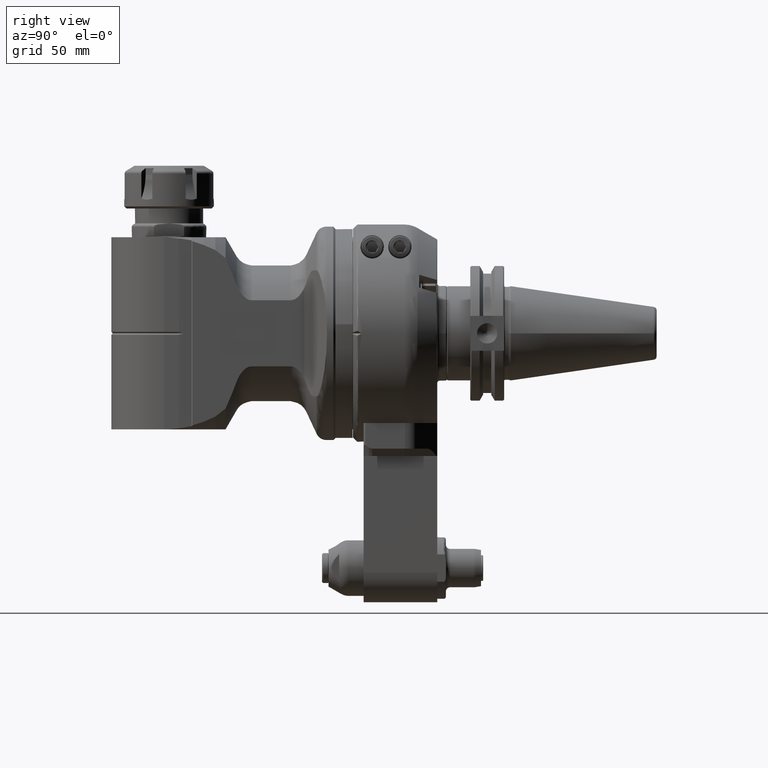
[diagram: clean part render]
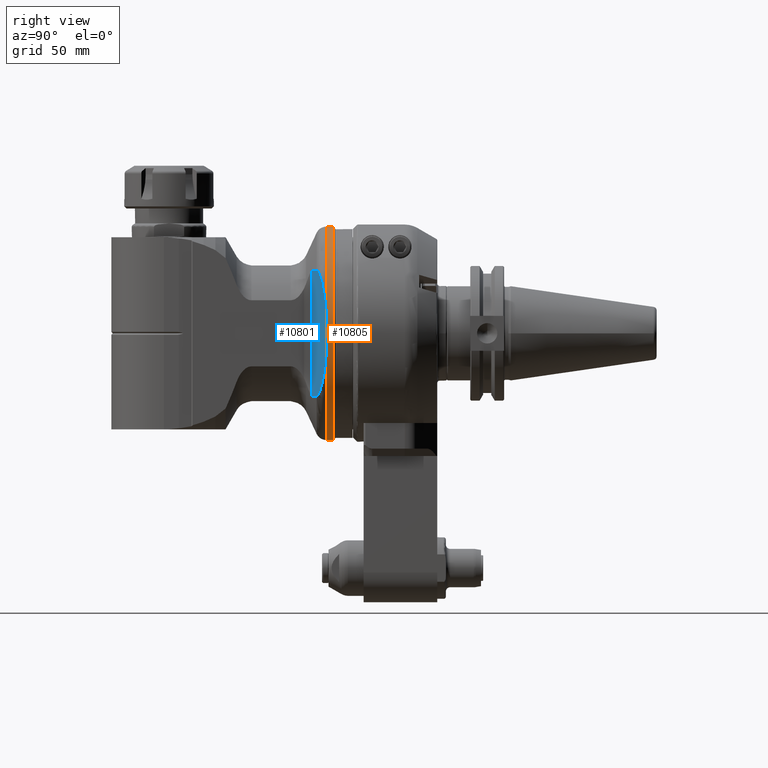
[diagram: same view with the hole feature highlighted: cylindrical wall and planar end face, labeled with their STEP entity ids]
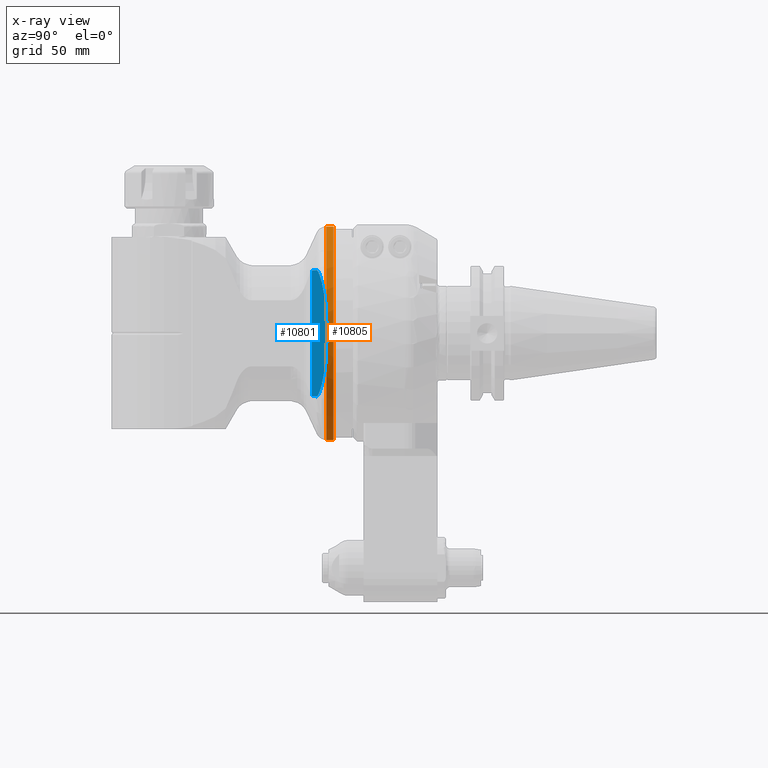
[diagram: x-ray of the same camera — body ghosted, the hole faces saturated]
A machine part, right view. The highlighted faces form one hole feature of diameter 100 mm: the cylindrical wall (entity #10805, orange) and its adjacent planar end face (entity #10801, blue) — they share a circular edge in the B-rep.
The next image is the same camera in x-ray (body ghosted, the hole faces saturated) — the bore reads through the body.
Wall:
#53=ELLIPSE('',#12007,53.2088886237962,50.);
#56=ELLIPSE('',#12013,53.2088886237962,50.);
#1034=LINE('',#21854,#1724);
#1724=VECTOR('',#14860,50.);
#1993=CYLINDRICAL_SURFACE('',#12016,50.);
#2901=FACE_OUTER_BOUND('',#3619,.T.);
#3619=EDGE_LOOP('',(#9532,#9533,#9534,#9535,#9536,#9537,#9538,#9539,#9540));
#4287=CIRCLE('',#12015,50.);
#4288=CIRCLE('',#12017,50.);
#4289=CIRCLE('',#12018,50.);
#4290=CIRCLE('',#12019,50.);
#4291=CIRCLE('',#12020,50.);
#5242=VERTEX_POINT('',#21761);
#5243=VERTEX_POINT('',#21780);
#5246=VERTEX_POINT('',#21807);
#5247=VERTEX_POINT('',#21826);
#5248=VERTEX_POINT('',#21849);
#5249=VERTEX_POINT('',#21850);
#5250=VERTEX_POINT('',#21853);
#6713=EDGE_CURVE('',#5242,#5243,#53,.T.);
#6719=EDGE_CURVE('',#5246,#5247,#56,.T.);
#6721=EDGE_CURVE('',#5247,#5242,#4287,.T.);
#6722=EDGE_CURVE('',#5248,#5249,#4288,.T.);
#6723=EDGE_CURVE('',#5249,#5248,#4289,.T.);
#6724=EDGE_CURVE('',#5249,#5250,#1034,.T.);
#6725=EDGE_CURVE('',#5243,#5250,#4290,.T.);
#6726=EDGE_CURVE('',#5250,#5246,#4291,.T.);
#9532=ORIENTED_EDGE('',*,*,#6722,.F.);
#9533=ORIENTED_EDGE('',*,*,#6723,.F.);
#9534=ORIENTED_EDGE('',*,*,#6724,.T.);
#9535=ORIENTED_EDGE('',*,*,#6725,.F.);
#9536=ORIENTED_EDGE('',*,*,#6713,.F.);
#9537=ORIENTED_EDGE('',*,*,#6721,.F.);
#9538=ORIENTED_EDGE('',*,*,#6719,.F.);
#9539=ORIENTED_EDGE('',*,*,#6726,.F.);
#9540=ORIENTED_EDGE('',*,*,#6724,.F.);
#10805=ADVANCED_FACE('',(#2901),#1993,.T.);
#12007=AXIS2_PLACEMENT_3D('',#21781,#14836,#14837);
#12013=AXIS2_PLACEMENT_3D('',#21827,#14848,#14849);
#12015=AXIS2_PLACEMENT_3D('',#21847,#14852,#14853);
#12016=AXIS2_PLACEMENT_3D('',#21848,#14854,#14855);
#12017=AXIS2_PLACEMENT_3D('',#21851,#14856,#14857);
#12018=AXIS2_PLACEMENT_3D('',#21852,#14858,#14859);
#12019=AXIS2_PLACEMENT_3D('',#21855,#14861,#14862);
#12020=AXIS2_PLACEMENT_3D('',#21856,#14863,#14864);
#14836=DIRECTION('center_axis',(0.939692620785897,0.,0.342020143325699));
#14837=DIRECTION('ref_axis',(0.342020143325699,0.,-0.939692620785897));
#14848=DIRECTION('center_axis',(0.939692620785897,0.,-0.342020143325699));
#14849=DIRECTION('ref_axis',(-0.342020143325699,0.,-0.939692620785897));
#14852=DIRECTION('center_axis',(1.,0.,0.));
#14853=DIRECTION('ref_axis',(0.,0.187279909699701,-0.982306589320703));
#14854=DIRECTION('center_axis',(-1.,0.,0.));
#14855=DIRECTION('ref_axis',(0.,1.,0.));
#14856=DIRECTION('center_axis',(-1.,0.,0.));
#14857=DIRECTION('ref_axis',(0.,1.,0.));
#14858=DIRECTION('center_axis',(-1.,0.,0.));
#14859=DIRECTION('ref_axis',(0.,1.,0.));
#14860=DIRECTION('',(1.,0.,0.));
#14861=DIRECTION('center_axis',(1.,0.,0.));
#14862=DIRECTION('ref_axis',(0.,-0.1872799096992,0.982306589320798));
#14863=DIRECTION('center_axis',(1.,0.,0.));
#14864=DIRECTION('ref_axis',(0.,-0.1872799096992,0.982306589320798));
#21761=CARTESIAN_POINT('',(16.31464863572,9.363995485014,49.11532946603));
#21780=CARTESIAN_POINT('',(16.31464863573,-9.363995485039,49.11532946603));
#21781=CARTESIAN_POINT('Origin',(34.1911666075347,0.,0.));
#21807=CARTESIAN_POINT('',(16.31464863572,-9.363995484987,-49.11532946603));
#21826=CARTESIAN_POINT('',(16.31464863573,9.36399548502,-49.11532946603));
#21827=CARTESIAN_POINT('Origin',(34.1911666075347,0.,0.));
#21847=CARTESIAN_POINT('Origin',(16.31464863572,0.,0.));
#21848=CARTESIAN_POINT('Origin',(54.606251,0.,0.));
#21849=CARTESIAN_POINT('',(13.,50.,0.));
#21850=CARTESIAN_POINT('',(13.,-50.,6.12323399573677E-15));
#21851=CARTESIAN_POINT('Origin',(13.,0.,0.));
#21852=CARTESIAN_POINT('Origin',(13.,0.,0.));
#21853=CARTESIAN_POINT('',(16.3146486357221,-50.,6.12323399573677E-15));
#21854=CARTESIAN_POINT('',(54.606251,-50.,6.12323399573677E-15));
#21855=CARTESIAN_POINT('Origin',(16.31464863572,0.,0.));
#21856=CARTESIAN_POINT('Origin',(16.31464863572,0.,0.));
End face:
#52=ELLIPSE('',#12005,50.3672702558906,29.5863002294594);
#53=ELLIPSE('',#12007,53.2088886237962,50.);
#54=ELLIPSE('',#12008,50.3672702558906,29.5863002294594);
#316=B_SPLINE_CURVE_WITH_KNOTS('',3,(#21762,#21763,#21764,#21765,#21766,
#21767,#21768,#21769,#21770,#21771,#21772,#21773,#21774,#21775,#21776,#21777,
#21778,#21779),.UNSPECIFIED.,.F.,.F.,(4,2,2,2,2,2,2,2,4),(7.09037016510969,
7.87701940297547,8.1777676130302,8.47851582308493,8.80354910515075,9.12858238721657,
9.39474930405345,9.46225514204568,9.47110878449787),.UNSPECIFIED.);
#317=B_SPLINE_CURVE_WITH_KNOTS('',3,(#21783,#21784,#21785,#21786,#21787,
#21788,#21789,#21790,#21791,#21792,#21793,#21794,#21795,#21796,#21797,#21798,
#21799,#21800),.UNSPECIFIED.,.F.,.F.,(4,2,2,2,2,2,2,2,4),(-5.31609924693855,
-4.52945000907508,-4.22870179902035,-3.92795358896562,-3.6029203068998,
-3.27788702483398,-3.0117201079971,-2.94421427000487,-2.93536062682004),
 .UNSPECIFIED.);
#1011=LINE('',#21300,#1701);
#1701=VECTOR('',#14677,58.64425386089);
#2345=PLANE('',#12006);
#2897=FACE_OUTER_BOUND('',#3615,.T.);
#3615=EDGE_LOOP('',(#9510,#9511,#9512,#9513,#9514,#9515));
#5167=VERTEX_POINT('',#21282);
#5168=VERTEX_POINT('',#21299);
#5241=VERTEX_POINT('',#21757);
#5242=VERTEX_POINT('',#21761);
#5243=VERTEX_POINT('',#21780);
#5244=VERTEX_POINT('',#21782);
#6607=EDGE_CURVE('',#5167,#5168,#1011,.T.);
#6711=EDGE_CURVE('',#5167,#5241,#52,.T.);
#6712=EDGE_CURVE('',#5242,#5241,#316,.T.);
#6713=EDGE_CURVE('',#5242,#5243,#53,.T.);
#6714=EDGE_CURVE('',#5243,#5244,#317,.T.);
#6715=EDGE_CURVE('',#5244,#5168,#54,.T.);
#9510=ORIENTED_EDGE('',*,*,#6711,.T.);
#9511=ORIENTED_EDGE('',*,*,#6712,.F.);
#9512=ORIENTED_EDGE('',*,*,#6713,.T.);
#9513=ORIENTED_EDGE('',*,*,#6714,.T.);
#9514=ORIENTED_EDGE('',*,*,#6715,.T.);
#9515=ORIENTED_EDGE('',*,*,#6607,.F.);
#10801=ADVANCED_FACE('',(#2897),#2345,.F.);
#12005=AXIS2_PLACEMENT_3D('',#21759,#14832,#14833);
#12006=AXIS2_PLACEMENT_3D('',#21760,#14834,#14835);
#12007=AXIS2_PLACEMENT_3D('',#21781,#14836,#14837);
#12008=AXIS2_PLACEMENT_3D('',#21801,#14838,#14839);
#14677=DIRECTION('',(5.827869456935E-14,-1.,-1.605390235018E-13));
#14832=DIRECTION('center_axis',(0.939692620785897,0.,0.342020143325699));
#14833=DIRECTION('ref_axis',(-0.342020143325699,1.39349996950756E-15,0.939692620785897));
#14834=DIRECTION('center_axis',(-0.939692620785897,0.,-0.342020143325699));
#14835=DIRECTION('ref_axis',(-0.342020143325699,0.,0.939692620785897));
#14836=DIRECTION('center_axis',(0.939692620785897,0.,0.342020143325699));
#14837=DIRECTION('ref_axis',(0.342020143325699,0.,-0.939692620785897));
#14838=DIRECTION('center_axis',(0.939692620785897,0.,0.342020143325699));
#14839=DIRECTION('ref_axis',(-0.342020143325699,1.39349996950756E-15,0.939692620785897));
#21282=CARTESIAN_POINT('',(23.04205971778,29.32212693045,30.6319194267));
#21299=CARTESIAN_POINT('',(23.04205971778,-29.32212693045,30.6319194267));
#21300=CARTESIAN_POINT('',(23.04205971778,29.32212693045,30.63191942671));
#21757=CARTESIAN_POINT('',(20.8461875004803,29.5857914026295,36.6650287600173));
#21759=CARTESIAN_POINT('Origin',(20.7451569433892,1.77635683940025E-14,
36.9426079340045));
#21760=CARTESIAN_POINT('Origin',(24.00000004808,0.,28.));
#21761=CARTESIAN_POINT('',(16.31464863572,9.363995485014,49.11532946603));
#21762=CARTESIAN_POINT('Ctrl Pts',(16.3146486357204,9.3639954850139,49.1153294660296));
#21763=CARTESIAN_POINT('Ctrl Pts',(16.5089546643471,12.1641130973679,48.5814780399138));
#21764=CARTESIAN_POINT('Ctrl Pts',(16.7970626489297,14.89268418197,47.7899078579087));
#21765=CARTESIAN_POINT('Ctrl Pts',(17.2779022721392,18.2335890551422,46.4688118507617));
#21766=CARTESIAN_POINT('Ctrl Pts',(17.4371534747882,19.2325943001654,46.0312727674626));
#21767=CARTESIAN_POINT('Ctrl Pts',(17.7890019232365,21.1784209335023,45.0645771002807));
#21768=CARTESIAN_POINT('Ctrl Pts',(17.9817805222086,22.1249619431992,44.5349222526509));
#21769=CARTESIAN_POINT('Ctrl Pts',(18.3765030725583,23.8625497430824,43.4504309586156));
#21770=CARTESIAN_POINT('Ctrl Pts',(18.6191470504405,24.8187856959593,42.7837721084178));
#21771=CARTESIAN_POINT('Ctrl Pts',(19.1522606848867,26.6017151146837,41.3190544357736));
#21772=CARTESIAN_POINT('Ctrl Pts',(19.4425932033076,27.4287590831444,40.5213723972789));
#21773=CARTESIAN_POINT('Ctrl Pts',(19.9758958164078,28.6338312433967,39.05613551005));
#21774=CARTESIAN_POINT('Ctrl Pts',(20.2825600158396,29.2079207962777,38.2135825467563));
#21775=CARTESIAN_POINT('Ctrl Pts',(20.6474740822835,29.5221310747005,37.2109893891602));
#21776=CARTESIAN_POINT('Ctrl Pts',(20.738047373882,29.5748920999617,36.9621413156877));
#21777=CARTESIAN_POINT('Ctrl Pts',(20.825030055835,29.5852601580148,36.7231583611383));
#21778=CARTESIAN_POINT('Ctrl Pts',(20.8354969146307,29.5858990840588,36.6944009029444));
#21779=CARTESIAN_POINT('Ctrl Pts',(20.8461875003858,29.5857914029915,36.6650287599816));
#21780=CARTESIAN_POINT('',(16.31464863573,-9.363995485039,49.11532946603));
#21781=CARTESIAN_POINT('Origin',(34.1911666075347,0.,0.));
#21782=CARTESIAN_POINT('',(20.8461875025902,-29.5857914047178,36.6650287525181));
#21783=CARTESIAN_POINT('Ctrl Pts',(16.3146486357221,-9.36399548503858,49.1153294660249));
#21784=CARTESIAN_POINT('Ctrl Pts',(16.5089546643488,-12.1641130973839,48.5814780399092));
#21785=CARTESIAN_POINT('Ctrl Pts',(16.7970626489307,-14.8926841819771,47.7899078579059));
#21786=CARTESIAN_POINT('Ctrl Pts',(17.2779022721392,-18.2335890551422,46.4688118507617));
#21787=CARTESIAN_POINT('Ctrl Pts',(17.4371534747882,-19.2325943001654,46.0312727674626));
#21788=CARTESIAN_POINT('Ctrl Pts',(17.7890019232365,-21.1784209335023,45.0645771002807));
#21789=CARTESIAN_POINT('Ctrl Pts',(17.9817805222086,-22.1249619431991,44.5349222526509));
#21790=CARTESIAN_POINT('Ctrl Pts',(18.3765030725583,-23.8625497430824,43.4504309586156));
#21791=CARTESIAN_POINT('Ctrl Pts',(18.6191470504405,-24.8187856959593,42.7837721084178));
#21792=CARTESIAN_POINT('Ctrl Pts',(19.1522606848867,-26.6017151146837,41.3190544357736));
#21793=CARTESIAN_POINT('Ctrl Pts',(19.4425932033076,-27.4287590831444,40.5213723972789));
#21794=CARTESIAN_POINT('Ctrl Pts',(19.9758958164078,-28.6338312433967,39.05613551005));
#21795=CARTESIAN_POINT('Ctrl Pts',(20.2825600158396,-29.2079207962777,38.2135825467563));
#21796=CARTESIAN_POINT('Ctrl Pts',(20.6474740822835,-29.5221310747005,37.2109893891602));
#21797=CARTESIAN_POINT('Ctrl Pts',(20.738047373882,-29.5748920999617,36.9621413156877));
#21798=CARTESIAN_POINT('Ctrl Pts',(20.8250300566696,-29.5852601581142,36.7231583588454));
#21799=CARTESIAN_POINT('Ctrl Pts',(20.8354969163632,-29.585899084164,36.6944008981844));
#21800=CARTESIAN_POINT('Ctrl Pts',(20.8461875030403,-29.5857914029647,36.6650287526884));
#21801=CARTESIAN_POINT('Origin',(20.7451569433892,1.77635683940025E-14,
36.9426079340045));